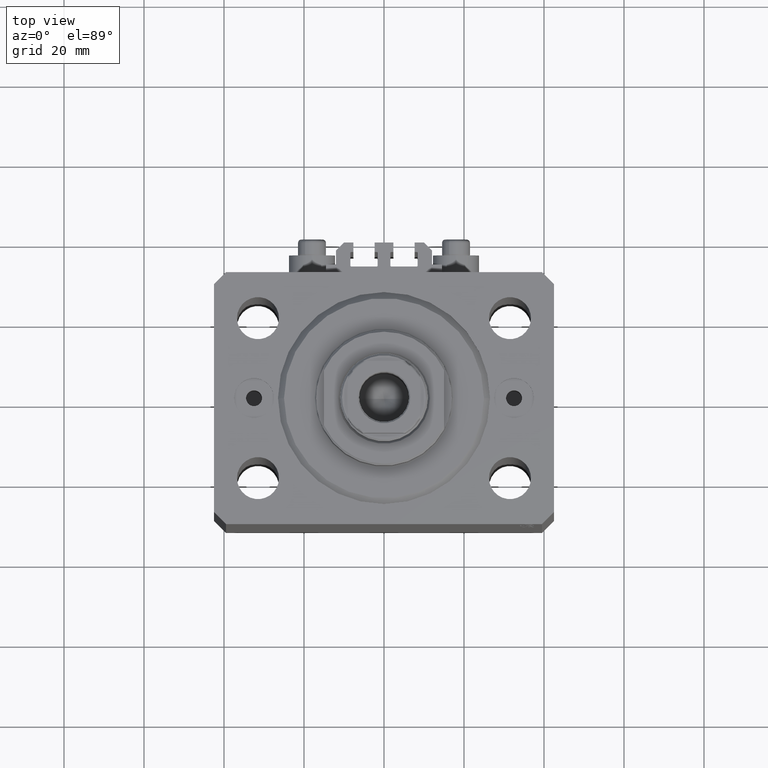
[diagram: clean part render]
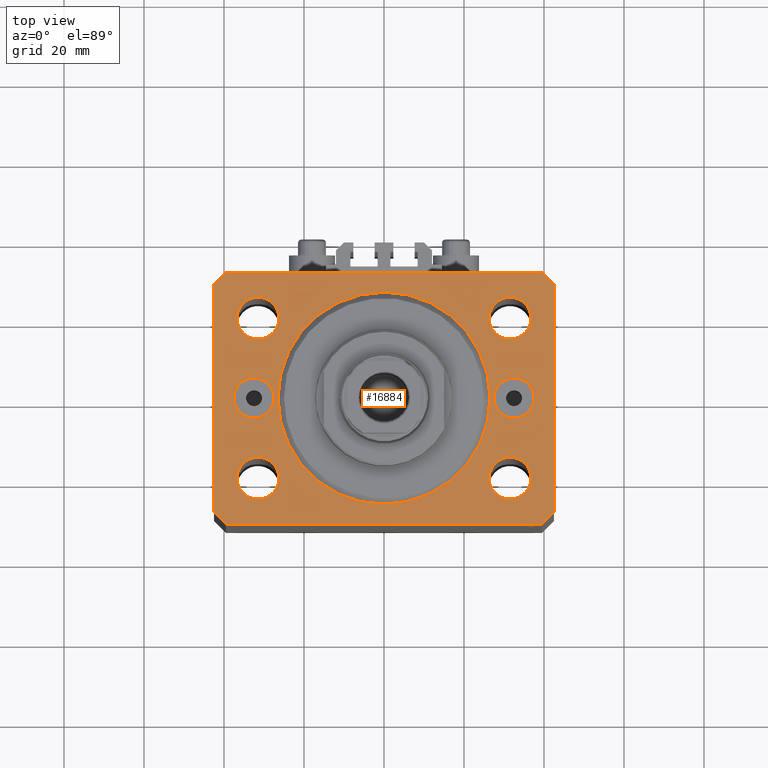
[diagram: same view with one face highlighted and labeled with its STEP entity id]
A machine part, top view. The second image highlights one B-rep face of the part: STEP entity #16884.
In plain terms, the highlighted planar face has unit normal (0, 0, 1).
Its self-contained STEP definition (entity closure, byte-faithful):
#79 = CIRCLE ( 'NONE', #32867, 5.249999999999997335 ) ;
#379 = VERTEX_POINT ( 'NONE', #16963 ) ;
#466 = VERTEX_POINT ( 'NONE', #25292 ) ;
#567 = CIRCLE ( 'NONE', #28763, 5.000000000000000888 ) ;
#1419 = VECTOR ( 'NONE', #33708, 1000.000000000000000 ) ;
#1724 = ORIENTED_EDGE ( 'NONE', *, *, #35326, .T. ) ;
#1807 = CARTESIAN_POINT ( 'NONE',  ( 39.50000000000056843, 31.50000000000000000, 0.000000000000000000 ) ) ;
#2309 = EDGE_CURVE ( 'NONE', #8420, #8293, #29492, .T. ) ;
#2323 = EDGE_LOOP ( 'NONE', ( #10082, #12999 ) ) ;
#2339 = CARTESIAN_POINT ( 'NONE',  ( -31.49999999999999289, -20.00000000000000355, 0.000000000000000000 ) ) ;
#2388 = ORIENTED_EDGE ( 'NONE', *, *, #9568, .F. ) ;
#2499 = DIRECTION ( 'NONE',  ( -1.000000000000000000, 0.000000000000000000, 0.000000000000000000 ) ) ;
#2541 = ORIENTED_EDGE ( 'NONE', *, *, #36939, .F. ) ;
#2615 = VERTEX_POINT ( 'NONE', #12034 ) ;
#2618 = VERTEX_POINT ( 'NONE', #5111 ) ;
#2783 = CARTESIAN_POINT ( 'NONE',  ( -26.25000000000000000, 19.99999999999999645, 0.000000000000000000 ) ) ;
#2859 = EDGE_CURVE ( 'NONE', #43662, #7345, #79, .T. ) ;
#2978 = LINE ( 'NONE', #29230, #33741 ) ;
#3680 = LINE ( 'NONE', #43557, #23049 ) ;
#3755 = CARTESIAN_POINT ( 'NONE',  ( -31.50000000000000000, 19.99999999999999645, 0.000000000000000000 ) ) ;
#3756 = VERTEX_POINT ( 'NONE', #35381 ) ;
#3874 = DIRECTION ( 'NONE',  ( 1.000000000000000000, 0.000000000000000000, 0.000000000000000000 ) ) ;
#3891 = DIRECTION ( 'NONE',  ( -0.7071067811865471286, -0.7071067811865479058, 0.000000000000000000 ) ) ;
#3912 = DIRECTION ( 'NONE',  ( 0.7071067811865483499, 0.7071067811865466846, 0.000000000000000000 ) ) ;
#3988 = DIRECTION ( 'NONE',  ( 0.000000000000000000, 0.000000000000000000, 1.000000000000000000 ) ) ;
#4069 = AXIS2_PLACEMENT_3D ( 'NONE', #23190, #38706, #20562 ) ;
#4501 = DIRECTION ( 'NONE',  ( 1.000000000000000000, 0.000000000000000000, 0.000000000000000000 ) ) ;
#4520 = VERTEX_POINT ( 'NONE', #29649 ) ;
#4638 = CARTESIAN_POINT ( 'NONE',  ( -39.50000000000000711, -31.50000000000000000, 0.000000000000000000 ) ) ;
#4648 = EDGE_CURVE ( 'NONE', #14417, #3756, #22589, .T. ) ;
#5111 = CARTESIAN_POINT ( 'NONE',  ( 39.50000000000000711, -31.50000000000000000, 0.000000000000000000 ) ) ;
#5120 = CIRCLE ( 'NONE', #47047, 5.250000000000000888 ) ;
#5223 = EDGE_CURVE ( 'NONE', #29086, #9420, #15084, .T. ) ;
#5326 = ORIENTED_EDGE ( 'NONE', *, *, #7127, .F. ) ;
#6102 = AXIS2_PLACEMENT_3D ( 'NONE', #36242, #20976, #25257 ) ;
#6104 = CARTESIAN_POINT ( 'NONE',  ( -42.50000000000000000, 28.50000000000000000, 0.000000000000000000 ) ) ;
#6448 = VECTOR ( 'NONE', #46919, 1000.000000000000000 ) ;
#6777 = CARTESIAN_POINT ( 'NONE',  ( 0.000000000000000000, 0.000000000000000000, 0.000000000000000000 ) ) ;
#6926 = EDGE_CURVE ( 'NONE', #2618, #10704, #3680, .T. ) ;
#7127 = EDGE_CURVE ( 'NONE', #27117, #15791, #21536, .T. ) ;
#7229 = FACE_BOUND ( 'NONE', #8099, .T. ) ;
#7345 = VERTEX_POINT ( 'NONE', #37752 ) ;
#7371 = CARTESIAN_POINT ( 'NONE',  ( 0.000000000000000000, 0.000000000000000000, 0.000000000000000000 ) ) ;
#8099 = EDGE_LOOP ( 'NONE', ( #2541, #5326 ) ) ;
#8293 = VERTEX_POINT ( 'NONE', #20563 ) ;
#8420 = VERTEX_POINT ( 'NONE', #25080 ) ;
#8534 = VERTEX_POINT ( 'NONE', #41756 ) ;
#8647 = ORIENTED_EDGE ( 'NONE', *, *, #27464, .F. ) ;
#8757 = EDGE_CURVE ( 'NONE', #7345, #43662, #34859, .T. ) ;
#9222 = FACE_BOUND ( 'NONE', #43840, .T. ) ;
#9420 = VERTEX_POINT ( 'NONE', #9746 ) ;
#9568 = EDGE_CURVE ( 'NONE', #4520, #2615, #24546, .T. ) ;
#9746 = CARTESIAN_POINT ( 'NONE',  ( 39.50000000000056843, 31.50000000000000000, 0.000000000000000000 ) ) ;
#9830 = AXIS2_PLACEMENT_3D ( 'NONE', #35430, #17283, #28978 ) ;
#9900 = LINE ( 'NONE', #1807, #21459 ) ;
#10082 = ORIENTED_EDGE ( 'NONE', *, *, #8757, .F. ) ;
#10704 = VERTEX_POINT ( 'NONE', #14047 ) ;
#12034 = CARTESIAN_POINT ( 'NONE',  ( 26.25000000000000355, 19.99999999999999289, 0.000000000000000000 ) ) ;
#12099 = CARTESIAN_POINT ( 'NONE',  ( -42.50000000000000000, -28.50000000000000000, 0.000000000000000000 ) ) ;
#12188 = CARTESIAN_POINT ( 'NONE',  ( -37.50000000000000000, 6.123233995736768255E-16, 0.000000000000000000 ) ) ;
#12244 = ORIENTED_EDGE ( 'NONE', *, *, #2309, .F. ) ;
#12668 = AXIS2_PLACEMENT_3D ( 'NONE', #38749, #34930, #31352 ) ;
#12999 = ORIENTED_EDGE ( 'NONE', *, *, #2859, .F. ) ;
#13066 = ORIENTED_EDGE ( 'NONE', *, *, #13998, .F. ) ;
#13549 = DIRECTION ( 'NONE',  ( 1.000000000000000000, 0.000000000000000000, 0.000000000000000000 ) ) ;
#13998 = EDGE_CURVE ( 'NONE', #2615, #4520, #44461, .T. ) ;
#14047 = CARTESIAN_POINT ( 'NONE',  ( 42.50000000000000711, -28.50000000000000355, 0.000000000000000000 ) ) ;
#14264 = AXIS2_PLACEMENT_3D ( 'NONE', #34775, #16149, #16382 ) ;
#14407 = CIRCLE ( 'NONE', #28136, 5.250000000000000888 ) ;
#14417 = VERTEX_POINT ( 'NONE', #25246 ) ;
#14511 = DIRECTION ( 'NONE',  ( 1.000000000000000000, 0.000000000000000000, 0.000000000000000000 ) ) ;
#15084 = LINE ( 'NONE', #40394, #32528 ) ;
#15791 = VERTEX_POINT ( 'NONE', #29726 ) ;
#15861 = VERTEX_POINT ( 'NONE', #4638 ) ;
#16034 = EDGE_CURVE ( 'NONE', #466, #8534, #24317, .T. ) ;
#16149 = DIRECTION ( 'NONE',  ( 0.000000000000000000, 0.000000000000000000, 1.000000000000000000 ) ) ;
#16382 = DIRECTION ( 'NONE',  ( 1.000000000000000000, 0.000000000000000000, 0.000000000000000000 ) ) ;
#16884 = ADVANCED_FACE ( 'NONE', ( #39729, #43299, #23803, #38361, #17290, #9222, #7229, #25393 ), #39498, .T. ) ;
#16963 = CARTESIAN_POINT ( 'NONE',  ( -39.50000000000000711, 31.50000000000000000, 0.000000000000000000 ) ) ;
#17283 = DIRECTION ( 'NONE',  ( 0.000000000000000000, -0.000000000000000000, -1.000000000000000000 ) ) ;
#17290 = FACE_BOUND ( 'NONE', #33400, .T. ) ;
#17324 = LINE ( 'NONE', #17799, #6448 ) ;
#17748 = EDGE_CURVE ( 'NONE', #15861, #2618, #22959, .T. ) ;
#17799 = CARTESIAN_POINT ( 'NONE',  ( 42.50000000000000711, -28.50000000000000355, 0.000000000000000000 ) ) ;
#18023 = AXIS2_PLACEMENT_3D ( 'NONE', #7371, #22893, #4501 ) ;
#18082 = CARTESIAN_POINT ( 'NONE',  ( -32.50000000000000000, 0.000000000000000000, 0.000000000000000000 ) ) ;
#18558 = EDGE_CURVE ( 'NONE', #3756, #14417, #31188, .T. ) ;
#18946 = EDGE_CURVE ( 'NONE', #24749, #40303, #22133, .T. ) ;
#19041 = AXIS2_PLACEMENT_3D ( 'NONE', #6777, #35437, #24921 ) ;
#19126 = VERTEX_POINT ( 'NONE', #12099 ) ;
#20562 = DIRECTION ( 'NONE',  ( 1.000000000000000000, 0.000000000000000000, 0.000000000000000000 ) ) ;
#20563 = CARTESIAN_POINT ( 'NONE',  ( -26.24999999999999289, -20.00000000000000355, 0.000000000000000000 ) ) ;
#20976 = DIRECTION ( 'NONE',  ( 0.000000000000000000, 0.000000000000000000, 1.000000000000000000 ) ) ;
#21459 = VECTOR ( 'NONE', #2499, 1000.000000000000000 ) ;
#21536 = CIRCLE ( 'NONE', #45133, 5.000000000000000888 ) ;
#22133 = CIRCLE ( 'NONE', #6102, 5.250000000000000888 ) ;
#22397 = EDGE_CURVE ( 'NONE', #9420, #379, #9900, .T. ) ;
#22589 = CIRCLE ( 'NONE', #18023, 26.50000000000000355 ) ;
#22893 = DIRECTION ( 'NONE',  ( 0.000000000000000000, 0.000000000000000000, 1.000000000000000000 ) ) ;
#22959 = LINE ( 'NONE', #33233, #1419 ) ;
#23049 = VECTOR ( 'NONE', #3912, 1000.000000000000000 ) ;
#23190 = CARTESIAN_POINT ( 'NONE',  ( 31.50000000000000000, 19.99999999999999289, 0.000000000000000000 ) ) ;
#23329 = EDGE_CURVE ( 'NONE', #19126, #15861, #2978, .T. ) ;
#23803 = FACE_BOUND ( 'NONE', #39733, .T. ) ;
#24297 = DIRECTION ( 'NONE',  ( 0.000000000000000000, 0.000000000000000000, 1.000000000000000000 ) ) ;
#24317 = CIRCLE ( 'NONE', #9830, 4.999999999999997335 ) ;
#24546 = CIRCLE ( 'NONE', #33713, 5.249999999999997335 ) ;
#24749 = VERTEX_POINT ( 'NONE', #34178 ) ;
#24786 = CARTESIAN_POINT ( 'NONE',  ( 31.50000000000000000, 19.99999999999999289, 0.000000000000000000 ) ) ;
#24874 = ORIENTED_EDGE ( 'NONE', *, *, #23329, .T. ) ;
#24921 = DIRECTION ( 'NONE',  ( 1.000000000000000000, 0.000000000000000000, -0.000000000000000000 ) ) ;
#25080 = CARTESIAN_POINT ( 'NONE',  ( -36.74999999999999289, -20.00000000000000355, 0.000000000000000000 ) ) ;
#25246 = CARTESIAN_POINT ( 'NONE',  ( 26.50000000000000355, 0.000000000000000000, 0.000000000000000000 ) ) ;
#25249 = DIRECTION ( 'NONE',  ( 0.000000000000000000, 0.000000000000000000, 1.000000000000000000 ) ) ;
#25257 = DIRECTION ( 'NONE',  ( 1.000000000000000000, 0.000000000000000000, 0.000000000000000000 ) ) ;
#25292 = CARTESIAN_POINT ( 'NONE',  ( 37.50000000000000000, 0.000000000000000000, 0.000000000000000000 ) ) ;
#25393 = FACE_BOUND ( 'NONE', #31705, .T. ) ;
#25544 = DIRECTION ( 'NONE',  ( 1.000000000000000000, 0.000000000000000000, 0.000000000000000000 ) ) ;
#25726 = DIRECTION ( 'NONE',  ( 0.000000000000000000, 0.000000000000000000, 1.000000000000000000 ) ) ;
#27117 = VERTEX_POINT ( 'NONE', #12188 ) ;
#27311 = DIRECTION ( 'NONE',  ( 0.000000000000000000, 0.000000000000000000, 1.000000000000000000 ) ) ;
#27409 = EDGE_LOOP ( 'NONE', ( #43496, #37092, #40247, #24874, #45919, #32755, #43595, #33040 ) ) ;
#27464 = EDGE_CURVE ( 'NONE', #8293, #8420, #14407, .T. ) ;
#28136 = AXIS2_PLACEMENT_3D ( 'NONE', #2339, #24297, #13549 ) ;
#28601 = DIRECTION ( 'NONE',  ( 0.000000000000000000, 0.000000000000000000, 1.000000000000000000 ) ) ;
#28763 = AXIS2_PLACEMENT_3D ( 'NONE', #18082, #28601, #36228 ) ;
#28978 = DIRECTION ( 'NONE',  ( 1.000000000000000000, 0.000000000000000000, 0.000000000000000000 ) ) ;
#29086 = VERTEX_POINT ( 'NONE', #46627 ) ;
#29230 = CARTESIAN_POINT ( 'NONE',  ( -42.50000000000000000, -28.50000000000000000, 0.000000000000000000 ) ) ;
#29412 = EDGE_CURVE ( 'NONE', #40303, #24749, #5120, .T. ) ;
#29492 = CIRCLE ( 'NONE', #41686, 5.250000000000000888 ) ;
#29564 = VECTOR ( 'NONE', #3891, 1000.000000000000000 ) ;
#29649 = CARTESIAN_POINT ( 'NONE',  ( 36.75000000000000000, 19.99999999999999289, 0.000000000000000000 ) ) ;
#29726 = CARTESIAN_POINT ( 'NONE',  ( -27.50000000000000000, 0.000000000000000000, 0.000000000000000000 ) ) ;
#30348 = ORIENTED_EDGE ( 'NONE', *, *, #4648, .F. ) ;
#31188 = CIRCLE ( 'NONE', #38034, 26.50000000000000355 ) ;
#31352 = DIRECTION ( 'NONE',  ( 1.000000000000000000, 0.000000000000000000, 0.000000000000000000 ) ) ;
#31705 = EDGE_LOOP ( 'NONE', ( #35681, #1724 ) ) ;
#31938 = EDGE_LOOP ( 'NONE', ( #33616, #43822 ) ) ;
#32528 = VECTOR ( 'NONE', #44210, 1000.000000000000114 ) ;
#32597 = EDGE_CURVE ( 'NONE', #379, #47228, #36605, .T. ) ;
#32672 = CARTESIAN_POINT ( 'NONE',  ( -31.49999999999999289, -20.00000000000000355, 0.000000000000000000 ) ) ;
#32755 = ORIENTED_EDGE ( 'NONE', *, *, #6926, .T. ) ;
#32790 = CARTESIAN_POINT ( 'NONE',  ( 0.000000000000000000, 0.000000000000000000, 0.000000000000000000 ) ) ;
#32867 = AXIS2_PLACEMENT_3D ( 'NONE', #36995, #36759, #25544 ) ;
#33040 = ORIENTED_EDGE ( 'NONE', *, *, #5223, .T. ) ;
#33138 = VECTOR ( 'NONE', #38831, 1000.000000000000000 ) ;
#33233 = CARTESIAN_POINT ( 'NONE',  ( -39.50000000000000711, -31.50000000000000000, 0.000000000000000000 ) ) ;
#33254 = CIRCLE ( 'NONE', #12668, 4.999999999999997335 ) ;
#33400 = EDGE_LOOP ( 'NONE', ( #8647, #12244 ) ) ;
#33616 = ORIENTED_EDGE ( 'NONE', *, *, #29412, .F. ) ;
#33708 = DIRECTION ( 'NONE',  ( 1.000000000000000000, 0.000000000000000000, 0.000000000000000000 ) ) ;
#33713 = AXIS2_PLACEMENT_3D ( 'NONE', #24786, #25726, #14511 ) ;
#33741 = VECTOR ( 'NONE', #35936, 1000.000000000000000 ) ;
#34178 = CARTESIAN_POINT ( 'NONE',  ( -36.75000000000000000, 19.99999999999999645, 0.000000000000000000 ) ) ;
#34390 = ORIENTED_EDGE ( 'NONE', *, *, #18558, .F. ) ;
#34775 = CARTESIAN_POINT ( 'NONE',  ( 31.49999999999999289, -20.00000000000000355, 0.000000000000000000 ) ) ;
#34859 = CIRCLE ( 'NONE', #14264, 5.249999999999997335 ) ;
#34930 = DIRECTION ( 'NONE',  ( 0.000000000000000000, -0.000000000000000000, -1.000000000000000000 ) ) ;
#35326 = EDGE_CURVE ( 'NONE', #8534, #466, #33254, .T. ) ;
#35381 = CARTESIAN_POINT ( 'NONE',  ( -26.50000000000000355, 3.245314017740486554E-15, 0.000000000000000000 ) ) ;
#35430 = CARTESIAN_POINT ( 'NONE',  ( 32.50000000000000000, 0.000000000000000000, 0.000000000000000000 ) ) ;
#35437 = DIRECTION ( 'NONE',  ( 0.000000000000000000, 0.000000000000000000, 1.000000000000000000 ) ) ;
#35681 = ORIENTED_EDGE ( 'NONE', *, *, #16034, .T. ) ;
#35719 = LINE ( 'NONE', #6104, #33138 ) ;
#35936 = DIRECTION ( 'NONE',  ( 0.7071067811865471286, -0.7071067811865479058, 0.000000000000000000 ) ) ;
#36228 = DIRECTION ( 'NONE',  ( 1.000000000000000000, 0.000000000000000000, 0.000000000000000000 ) ) ;
#36242 = CARTESIAN_POINT ( 'NONE',  ( -31.50000000000000000, 19.99999999999999645, 0.000000000000000000 ) ) ;
#36605 = LINE ( 'NONE', #44466, #29564 ) ;
#36759 = DIRECTION ( 'NONE',  ( 0.000000000000000000, 0.000000000000000000, 1.000000000000000000 ) ) ;
#36939 = EDGE_CURVE ( 'NONE', #15791, #27117, #567, .T. ) ;
#36995 = CARTESIAN_POINT ( 'NONE',  ( 31.49999999999999289, -20.00000000000000355, 0.000000000000000000 ) ) ;
#37092 = ORIENTED_EDGE ( 'NONE', *, *, #32597, .T. ) ;
#37752 = CARTESIAN_POINT ( 'NONE',  ( 36.74999999999999289, -20.00000000000000355, 0.000000000000000000 ) ) ;
#38034 = AXIS2_PLACEMENT_3D ( 'NONE', #32790, #43750, #3874 ) ;
#38361 = FACE_BOUND ( 'NONE', #2323, .T. ) ;
#38706 = DIRECTION ( 'NONE',  ( 0.000000000000000000, 0.000000000000000000, 1.000000000000000000 ) ) ;
#38749 = CARTESIAN_POINT ( 'NONE',  ( 32.50000000000000000, 0.000000000000000000, 0.000000000000000000 ) ) ;
#38764 = DIRECTION ( 'NONE',  ( 1.000000000000000000, 0.000000000000000000, 0.000000000000000000 ) ) ;
#38831 = DIRECTION ( 'NONE',  ( 0.000000000000000000, -1.000000000000000000, 0.000000000000000000 ) ) ;
#39498 = PLANE ( 'NONE',  #19041 ) ;
#39729 = FACE_OUTER_BOUND ( 'NONE', #27409, .T. ) ;
#39733 = EDGE_LOOP ( 'NONE', ( #2388, #13066 ) ) ;
#39817 = DIRECTION ( 'NONE',  ( 1.000000000000000000, 0.000000000000000000, 0.000000000000000000 ) ) ;
#40247 = ORIENTED_EDGE ( 'NONE', *, *, #46843, .T. ) ;
#40303 = VERTEX_POINT ( 'NONE', #2783 ) ;
#40394 = CARTESIAN_POINT ( 'NONE',  ( 42.50000000000051870, 28.49999999999995381, 0.000000000000000000 ) ) ;
#41686 = AXIS2_PLACEMENT_3D ( 'NONE', #32672, #3988, #47216 ) ;
#41756 = CARTESIAN_POINT ( 'NONE',  ( 27.50000000000000355, 6.123233995736762338E-16, 0.000000000000000000 ) ) ;
#42799 = CARTESIAN_POINT ( 'NONE',  ( -32.50000000000000000, 0.000000000000000000, 0.000000000000000000 ) ) ;
#43299 = FACE_BOUND ( 'NONE', #31938, .T. ) ;
#43496 = ORIENTED_EDGE ( 'NONE', *, *, #22397, .T. ) ;
#43557 = CARTESIAN_POINT ( 'NONE',  ( 39.50000000000000711, -31.50000000000000000, 0.000000000000000000 ) ) ;
#43595 = ORIENTED_EDGE ( 'NONE', *, *, #46715, .T. ) ;
#43662 = VERTEX_POINT ( 'NONE', #44885 ) ;
#43750 = DIRECTION ( 'NONE',  ( 0.000000000000000000, 0.000000000000000000, 1.000000000000000000 ) ) ;
#43822 = ORIENTED_EDGE ( 'NONE', *, *, #18946, .F. ) ;
#43840 = EDGE_LOOP ( 'NONE', ( #30348, #34390 ) ) ;
#44210 = DIRECTION ( 'NONE',  ( -0.7071067811865356934, 0.7071067811865594521, 0.000000000000000000 ) ) ;
#44461 = CIRCLE ( 'NONE', #4069, 5.249999999999997335 ) ;
#44466 = CARTESIAN_POINT ( 'NONE',  ( -39.50000000000000711, 31.50000000000000000, 0.000000000000000000 ) ) ;
#44885 = CARTESIAN_POINT ( 'NONE',  ( 26.24999999999999645, -20.00000000000000355, 0.000000000000000000 ) ) ;
#45133 = AXIS2_PLACEMENT_3D ( 'NONE', #42799, #27311, #38764 ) ;
#45702 = CARTESIAN_POINT ( 'NONE',  ( -42.50000000000000000, 28.50000000000000000, 0.000000000000000000 ) ) ;
#45919 = ORIENTED_EDGE ( 'NONE', *, *, #17748, .T. ) ;
#46627 = CARTESIAN_POINT ( 'NONE',  ( 42.50000000000051870, 28.49999999999995381, 0.000000000000000000 ) ) ;
#46715 = EDGE_CURVE ( 'NONE', #10704, #29086, #17324, .T. ) ;
#46843 = EDGE_CURVE ( 'NONE', #47228, #19126, #35719, .T. ) ;
#46919 = DIRECTION ( 'NONE',  ( 8.886653596232072440E-15, 1.000000000000000000, 0.000000000000000000 ) ) ;
#47047 = AXIS2_PLACEMENT_3D ( 'NONE', #3755, #25249, #39817 ) ;
#47216 = DIRECTION ( 'NONE',  ( 1.000000000000000000, 0.000000000000000000, 0.000000000000000000 ) ) ;
#47228 = VERTEX_POINT ( 'NONE', #45702 ) ;